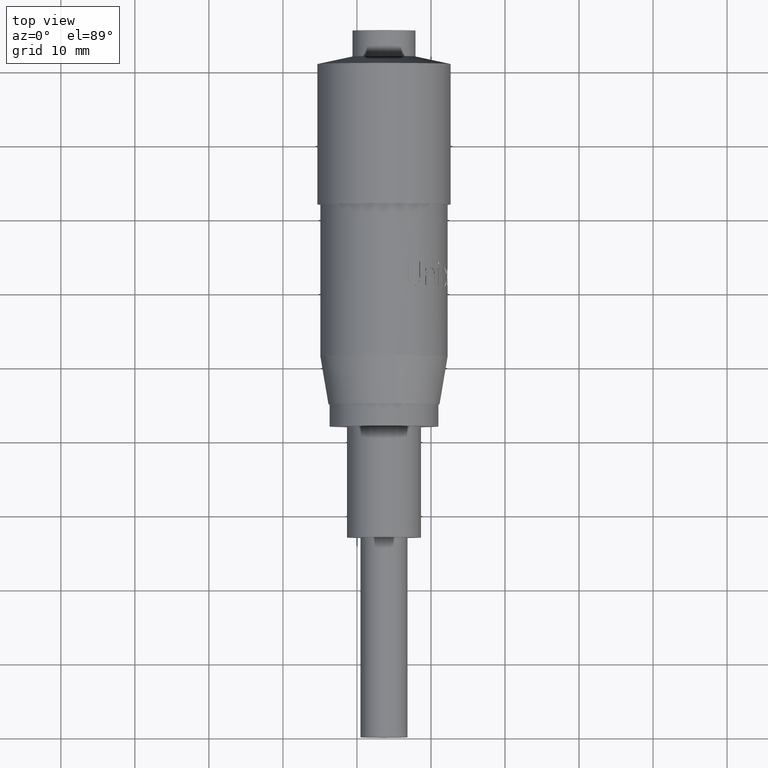
[diagram: clean part render]
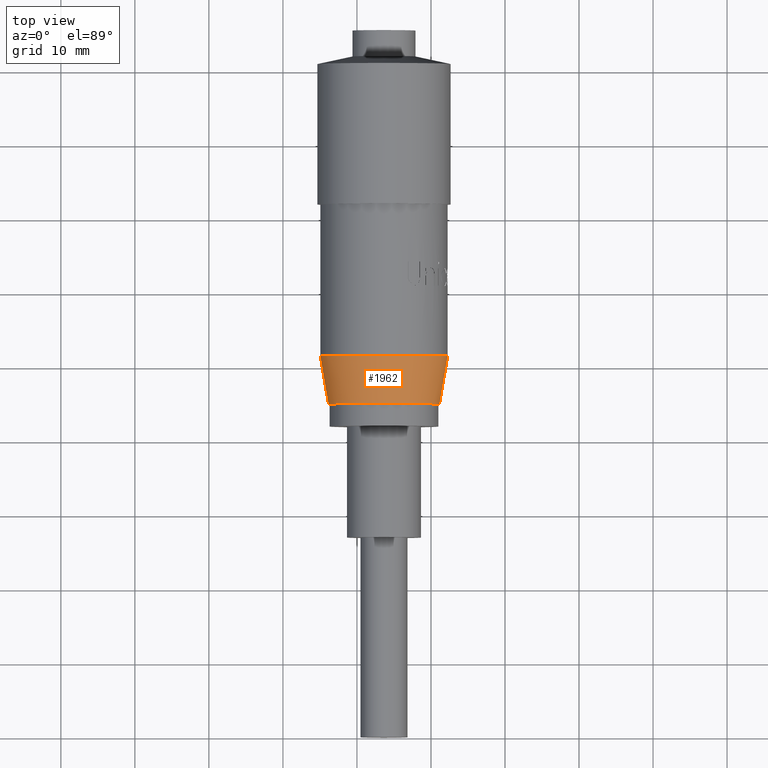
[diagram: same view with one face highlighted and labeled with its STEP entity id]
A machine part, top view. The second image highlights one B-rep face of the part: STEP entity #1962.
In plain terms, the highlighted conical surface has half-angle 9.605 deg.
Its self-contained STEP definition (entity closure, byte-faithful):
#37 = DIRECTION ( 'NONE',  ( -1.058937486943297600E-016, 1.000000000000000000, -0.0000000000000000000 ) ) ;
#61 = EDGE_CURVE ( 'NONE', #4965, #10130, #2511, .T. ) ;
#312 = DIRECTION ( 'NONE',  ( -0.1668583036929087400, 0.9859808854580929300, 0.0000000000000000000 ) ) ;
#894 = ORIENTED_EDGE ( 'NONE', *, *, #1006, .T. ) ;
#918 = CARTESIAN_POINT ( 'NONE',  ( 33.65296289245996100, 21.52618278390012900, 28.87709965591408000 ) ) ;
#959 = DIRECTION ( 'NONE',  ( -1.000000000000000000, 0.0000000000000000000, 0.0000000000000000000 ) ) ;
#1006 = EDGE_CURVE ( 'NONE', #6914, #10130, #5371, .T. ) ;
#1375 = CARTESIAN_POINT ( 'NONE',  ( 26.15296289245996400, 15.02618278390013100, 28.87709965591408000 ) ) ;
#1962 = ADVANCED_FACE ( 'NONE', ( #4916 ), #10587, .T. ) ;
#2511 = CIRCLE ( 'NONE', #10362, 8.599999999999999600 ) ;
#3243 = CARTESIAN_POINT ( 'NONE',  ( 41.15296289245995400, 15.02618278390013100, 28.87709965591408000 ) ) ;
#3826 = CARTESIAN_POINT ( 'NONE',  ( 25.05296289245996300, 21.52618278390012900, 28.87709965591408000 ) ) ;
#3895 = CARTESIAN_POINT ( 'NONE',  ( 33.65296289245996100, 15.02618278390013100, 28.87709965591408000 ) ) ;
#4230 = VERTEX_POINT ( 'NONE', #1375 ) ;
#4418 = DIRECTION ( 'NONE',  ( -1.058937486943297600E-016, 1.000000000000000000, -0.0000000000000000000 ) ) ;
#4785 = DIRECTION ( 'NONE',  ( -1.000000000000000000, 0.0000000000000000000, 0.0000000000000000000 ) ) ;
#4824 = VECTOR ( 'NONE', #9679, 1000.000000000000100 ) ;
#4916 = FACE_OUTER_BOUND ( 'NONE', #9636, .T. ) ;
#4965 = VERTEX_POINT ( 'NONE', #10168 ) ;
#5225 = AXIS2_PLACEMENT_3D ( 'NONE', #918, #37, #959 ) ;
#5371 = LINE ( 'NONE', #6054, #4824 ) ;
#5442 = CARTESIAN_POINT ( 'NONE',  ( 42.25296289245995500, 21.52618278390012900, 28.87709965591408000 ) ) ;
#5870 = VECTOR ( 'NONE', #312, 1000.000000000000200 ) ;
#6054 = CARTESIAN_POINT ( 'NONE',  ( 42.25296289245995500, 21.52618278390012900, 28.87709965591408000 ) ) ;
#6214 = DIRECTION ( 'NONE',  ( -1.000000000000000000, 0.0000000000000000000, 0.0000000000000000000 ) ) ;
#6787 = EDGE_CURVE ( 'NONE', #4230, #6914, #7493, .T. ) ;
#6914 = VERTEX_POINT ( 'NONE', #3243 ) ;
#7493 = CIRCLE ( 'NONE', #8043, 7.499999999999996400 ) ;
#7892 = EDGE_CURVE ( 'NONE', #4230, #4965, #8199, .T. ) ;
#8043 = AXIS2_PLACEMENT_3D ( 'NONE', #3895, #10095, #4785 ) ;
#8199 = LINE ( 'NONE', #3826, #5870 ) ;
#8200 = ORIENTED_EDGE ( 'NONE', *, *, #6787, .T. ) ;
#9374 = ORIENTED_EDGE ( 'NONE', *, *, #61, .F. ) ;
#9636 = EDGE_LOOP ( 'NONE', ( #8200, #894, #9374, #11124 ) ) ;
#9679 = DIRECTION ( 'NONE',  ( 0.1668583036929085200, 0.9859808854580930400, 2.043424875286775500E-017 ) ) ;
#10095 = DIRECTION ( 'NONE',  ( -1.058937486943297600E-016, 1.000000000000000000, -0.0000000000000000000 ) ) ;
#10130 = VERTEX_POINT ( 'NONE', #5442 ) ;
#10168 = CARTESIAN_POINT ( 'NONE',  ( 25.05296289245996300, 21.52618278390012900, 28.87709965591408000 ) ) ;
#10362 = AXIS2_PLACEMENT_3D ( 'NONE', #10629, #4418, #6214 ) ;
#10587 = CONICAL_SURFACE ( 'NONE', #5225, 8.599999999999999600, 0.1676424378312163000 ) ;
#10629 = CARTESIAN_POINT ( 'NONE',  ( 33.65296289245996100, 21.52618278390012900, 28.87709965591408000 ) ) ;
#11124 = ORIENTED_EDGE ( 'NONE', *, *, #7892, .F. ) ;